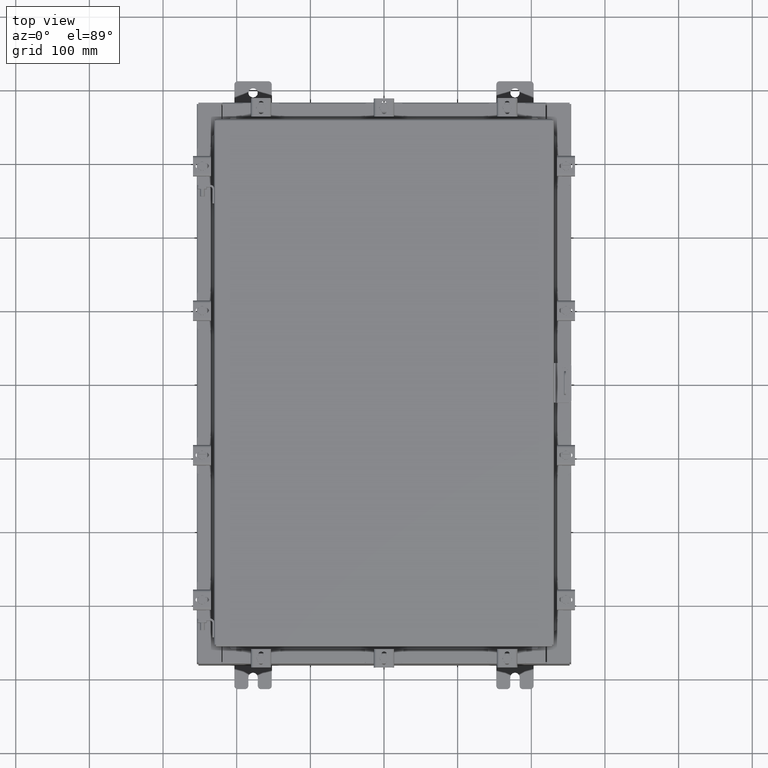
[diagram: clean part render]
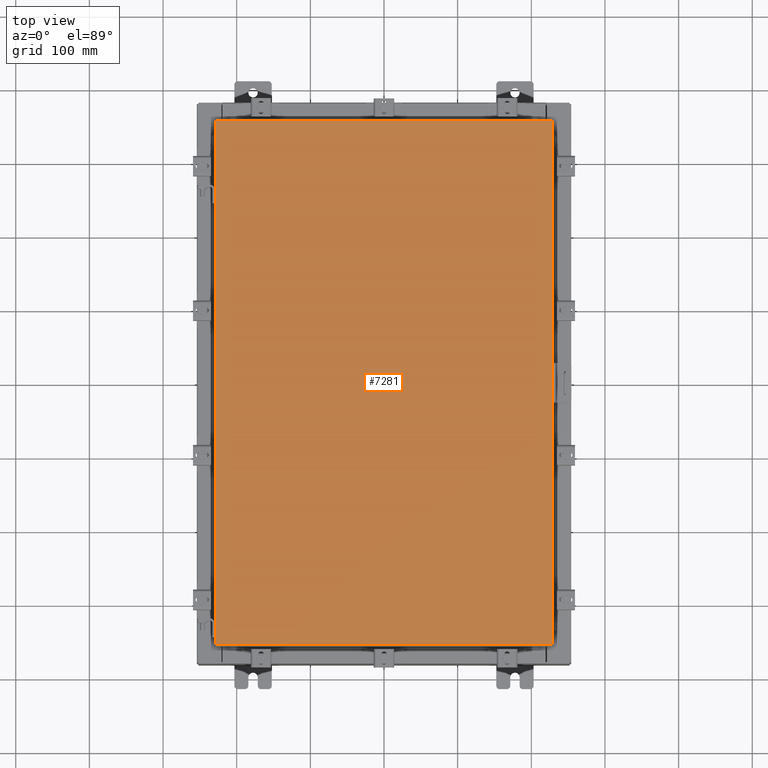
[diagram: same view with one face highlighted and labeled with its STEP entity id]
A machine part, top view. The second image highlights one B-rep face of the part: STEP entity #7281.
In plain terms, the highlighted planar face has unit normal (0, 0, -1).
Its self-contained STEP definition (entity closure, byte-faithful):
#102 = FACE_OUTER_BOUND ( 'NONE', #10377, .T. ) ;
#834 = CARTESIAN_POINT ( 'NONE',  ( -8.990299999999996000, -14.00629999999999800, 1.963515745446189200E-015 ) ) ;
#914 = DIRECTION ( 'NONE',  ( 1.000000000000000000, -0.0000000000000000000, -0.0000000000000000000 ) ) ;
#918 = CARTESIAN_POINT ( 'NONE',  ( 8.990300000000001300, 14.00629999999999800, -2.048885995248197400E-016 ) ) ;
#1416 = VECTOR ( 'NONE', #9256, 39.37007874015748100 ) ;
#1794 = VECTOR ( 'NONE', #8179, 39.37007874015748100 ) ;
#2050 = PLANE ( 'NONE',  #12602 ) ;
#2539 = LINE ( 'NONE', #19941, #1416 ) ;
#4537 = CARTESIAN_POINT ( 'NONE',  ( 8.990300000000001300, 14.00629999999999800, -2.048885995248197400E-016 ) ) ;
#5339 = ORIENTED_EDGE ( 'NONE', *, *, #13401, .T. ) ;
#5673 = DIRECTION ( 'NONE',  ( -1.000000000000000000, 0.0000000000000000000, -0.0000000000000000000 ) ) ;
#6584 = LINE ( 'NONE', #918, #1794 ) ;
#7281 = ADVANCED_FACE ( 'NONE', ( #102 ), #2050, .F. ) ;
#7600 = CARTESIAN_POINT ( 'NONE',  ( -8.990299999999996000, -14.00629999999999800, 1.980589795406590900E-015 ) ) ;
#8100 = CARTESIAN_POINT ( 'NONE',  ( -8.990299999999997700, 14.00630000000000100, -2.048885995248197400E-016 ) ) ;
#8179 = DIRECTION ( 'NONE',  ( -1.000000000000000000, -0.0000000000000000000, -0.0000000000000000000 ) ) ;
#8664 = CARTESIAN_POINT ( 'NONE',  ( 8.990300000000001300, -14.00629999999999800, -2.048885995248197400E-016 ) ) ;
#8812 = VECTOR ( 'NONE', #12201, 39.37007874015748100 ) ;
#8877 = CARTESIAN_POINT ( 'NONE',  ( 8.990300000000001300, -14.00629999999999800, -2.048885995248197400E-016 ) ) ;
#9256 = DIRECTION ( 'NONE',  ( 0.0000000000000000000, -1.000000000000000000, 0.0000000000000000000 ) ) ;
#10303 = VERTEX_POINT ( 'NONE', #8877 ) ;
#10377 = EDGE_LOOP ( 'NONE', ( #5339, #12244, #22755, #18033 ) ) ;
#12201 = DIRECTION ( 'NONE',  ( 0.0000000000000000000, 1.000000000000000000, 0.0000000000000000000 ) ) ;
#12244 = ORIENTED_EDGE ( 'NONE', *, *, #22961, .T. ) ;
#12311 = LINE ( 'NONE', #834, #21212 ) ;
#12602 = AXIS2_PLACEMENT_3D ( 'NONE', #14603, #16431, #5673 ) ;
#13401 = EDGE_CURVE ( 'NONE', #17519, #10303, #12311, .T. ) ;
#13420 = VERTEX_POINT ( 'NONE', #4537 ) ;
#14603 = CARTESIAN_POINT ( 'NONE',  ( 0.0000000000000000000, 0.0000000000000000000, 0.0000000000000000000 ) ) ;
#15239 = EDGE_CURVE ( 'NONE', #13420, #20671, #6584, .T. ) ;
#16431 = DIRECTION ( 'NONE',  ( 0.0000000000000000000, 0.0000000000000000000, -1.000000000000000000 ) ) ;
#17519 = VERTEX_POINT ( 'NONE', #7600 ) ;
#18033 = ORIENTED_EDGE ( 'NONE', *, *, #19735, .T. ) ;
#19735 = EDGE_CURVE ( 'NONE', #20671, #17519, #2539, .T. ) ;
#19941 = CARTESIAN_POINT ( 'NONE',  ( -8.990299999999997700, 14.00630000000000100, -2.048885995248197400E-016 ) ) ;
#20671 = VERTEX_POINT ( 'NONE', #8100 ) ;
#21212 = VECTOR ( 'NONE', #914, 39.37007874015748100 ) ;
#22755 = ORIENTED_EDGE ( 'NONE', *, *, #15239, .T. ) ;
#22961 = EDGE_CURVE ( 'NONE', #10303, #13420, #22991, .T. ) ;
#22991 = LINE ( 'NONE', #8664, #8812 ) ;